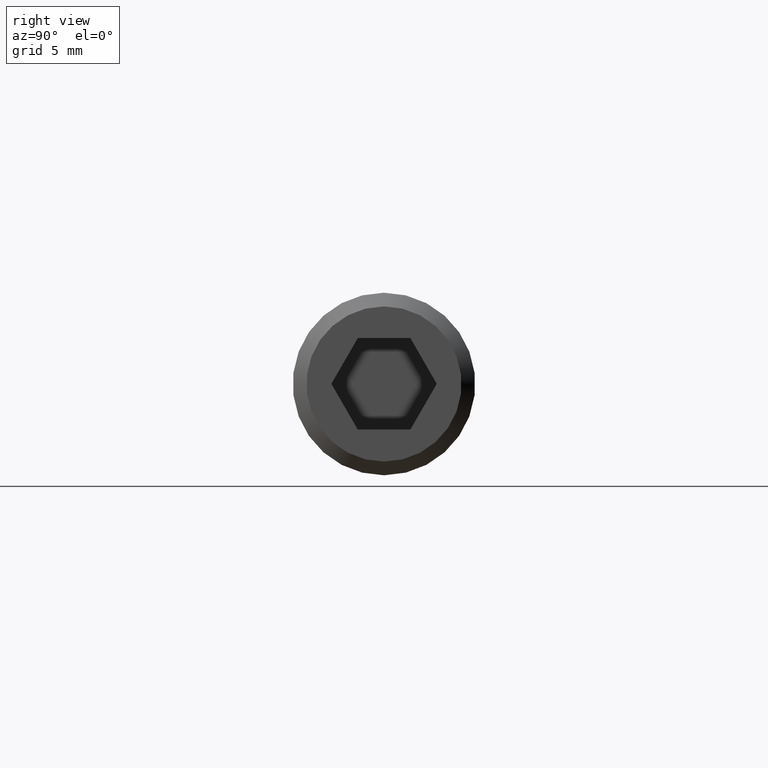
[diagram: clean part render]
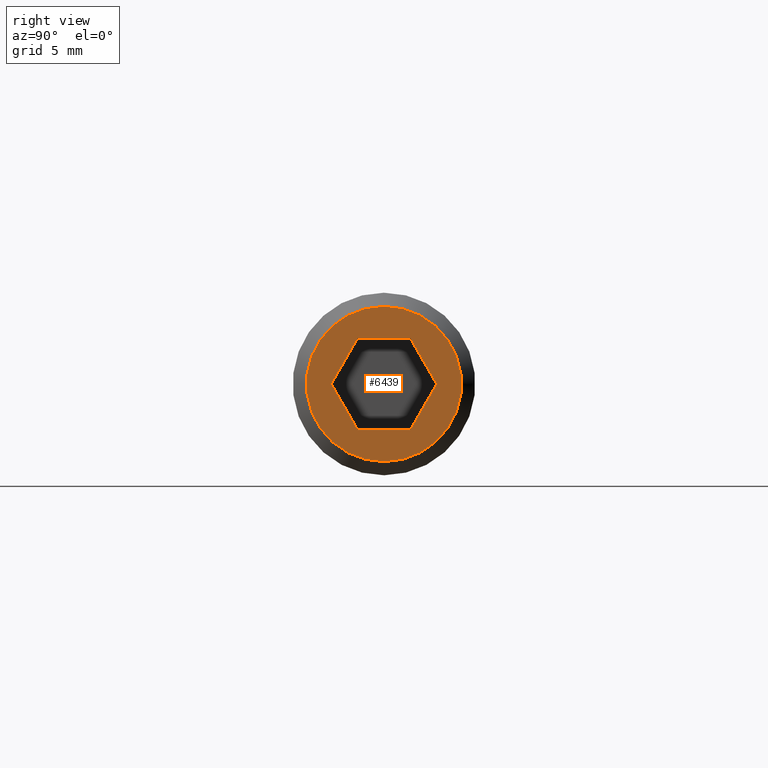
[diagram: same view with one face highlighted and labeled with its STEP entity id]
A machine part, right view. The second image highlights one B-rep face of the part: STEP entity #6439.
In plain terms, the highlighted planar face has unit normal (1, 0, 0).
Its self-contained STEP definition (entity closure, byte-faithful):
#275 = ORIENTED_EDGE ( 'NONE', *, *, #9650, .F. ) ;
#286 = LINE ( 'NONE', #12234, #2618 ) ;
#548 = CARTESIAN_POINT ( 'NONE',  ( 30.00000000000000000, -1.154700538379252400, -1.999999999999999600 ) ) ;
#970 = ORIENTED_EDGE ( 'NONE', *, *, #3928, .F. ) ;
#1005 = CARTESIAN_POINT ( 'NONE',  ( 30.00000000000000000, -2.309401076758502900, 2.168404344971008900E-016 ) ) ;
#1063 = EDGE_CURVE ( 'NONE', #8314, #8314, #10482, .T. ) ;
#1595 = CARTESIAN_POINT ( 'NONE',  ( 30.00000000000000000, -1.154700538379251000, 2.000000000000000000 ) ) ;
#1656 = VERTEX_POINT ( 'NONE', #12723 ) ;
#1833 = VERTEX_POINT ( 'NONE', #6808 ) ;
#2051 = CARTESIAN_POINT ( 'NONE',  ( 30.00000000000000000, 0.0000000000000000000, 0.0000000000000000000 ) ) ;
#2506 = CARTESIAN_POINT ( 'NONE',  ( 30.00000000000000000, -2.309401076758502500, 4.317532481129756600E-016 ) ) ;
#2618 = VECTOR ( 'NONE', #6367, 1000.000000000000000 ) ;
#2626 = DIRECTION ( 'NONE',  ( 0.0000000000000000000, -0.4999999999999999400, -0.8660254037844386000 ) ) ;
#2691 = VECTOR ( 'NONE', #10357, 1000.000000000000100 ) ;
#3044 = DIRECTION ( 'NONE',  ( 1.000000000000000000, 0.0000000000000000000, 0.0000000000000000000 ) ) ;
#3305 = ORIENTED_EDGE ( 'NONE', *, *, #1063, .T. ) ;
#3353 = AXIS2_PLACEMENT_3D ( 'NONE', #6063, #3937, #8928 ) ;
#3824 = CARTESIAN_POINT ( 'NONE',  ( 30.00000000000000000, -1.154700538379252400, -1.999999999999999600 ) ) ;
#3831 = FACE_OUTER_BOUND ( 'NONE', #4674, .T. ) ;
#3906 = VERTEX_POINT ( 'NONE', #548 ) ;
#3928 = EDGE_CURVE ( 'NONE', #1833, #1656, #286, .T. ) ;
#3937 = DIRECTION ( 'NONE',  ( 1.000000000000000000, 0.0000000000000000000, 0.0000000000000000000 ) ) ;
#4035 = CARTESIAN_POINT ( 'NONE',  ( 30.00000000000000000, 0.0000000000000000000, -3.400000000000000800 ) ) ;
#4674 = EDGE_LOOP ( 'NONE', ( #3305 ) ) ;
#4833 = DIRECTION ( 'NONE',  ( 0.0000000000000000000, 1.000000000000000000, 0.0000000000000000000 ) ) ;
#5522 = LINE ( 'NONE', #1595, #11510 ) ;
#5662 = EDGE_LOOP ( 'NONE', ( #12072, #8764, #970, #10079, #11413, #275 ) ) ;
#5923 = EDGE_CURVE ( 'NONE', #11010, #6556, #5522, .T. ) ;
#6063 = CARTESIAN_POINT ( 'NONE',  ( 30.00000000000000000, 0.0000000000000000000, 0.0000000000000000000 ) ) ;
#6301 = AXIS2_PLACEMENT_3D ( 'NONE', #2051, #3044, #7886 ) ;
#6367 = DIRECTION ( 'NONE',  ( 0.0000000000000000000, -0.4999999999999997200, 0.8660254037844388200 ) ) ;
#6439 = ADVANCED_FACE ( 'NONE', ( #8100, #3831 ), #6990, .T. ) ;
#6556 = VERTEX_POINT ( 'NONE', #1005 ) ;
#6806 = CARTESIAN_POINT ( 'NONE',  ( 30.00000000000000000, -1.154700538379251000, 2.000000000000000000 ) ) ;
#6808 = CARTESIAN_POINT ( 'NONE',  ( 30.00000000000000000, 2.309401076758503400, -8.844675031407550400E-016 ) ) ;
#6884 = VECTOR ( 'NONE', #11959, 1000.000000000000000 ) ;
#6985 = EDGE_CURVE ( 'NONE', #1656, #11010, #7496, .T. ) ;
#6990 = PLANE ( 'NONE',  #6301 ) ;
#7431 = EDGE_CURVE ( 'NONE', #3906, #12156, #10944, .T. ) ;
#7496 = LINE ( 'NONE', #12091, #6884 ) ;
#7724 = VECTOR ( 'NONE', #4833, 1000.000000000000000 ) ;
#7886 = DIRECTION ( 'NONE',  ( 0.0000000000000000000, 0.0000000000000000000, -1.000000000000000000 ) ) ;
#8100 = FACE_BOUND ( 'NONE', #5662, .T. ) ;
#8314 = VERTEX_POINT ( 'NONE', #4035 ) ;
#8359 = LINE ( 'NONE', #2506, #8960 ) ;
#8389 = EDGE_CURVE ( 'NONE', #12156, #1833, #10820, .T. ) ;
#8764 = ORIENTED_EDGE ( 'NONE', *, *, #6985, .F. ) ;
#8928 = DIRECTION ( 'NONE',  ( 0.0000000000000000000, 0.0000000000000000000, -1.000000000000000000 ) ) ;
#8960 = VECTOR ( 'NONE', #10278, 1000.000000000000000 ) ;
#9650 = EDGE_CURVE ( 'NONE', #6556, #3906, #8359, .T. ) ;
#10079 = ORIENTED_EDGE ( 'NONE', *, *, #8389, .F. ) ;
#10278 = DIRECTION ( 'NONE',  ( 0.0000000000000000000, 0.4999999999999995600, -0.8660254037844389300 ) ) ;
#10357 = DIRECTION ( 'NONE',  ( 0.0000000000000000000, 0.4999999999999999400, 0.8660254037844386000 ) ) ;
#10482 = CIRCLE ( 'NONE', #3353, 3.400000000000000800 ) ;
#10820 = LINE ( 'NONE', #11467, #2691 ) ;
#10944 = LINE ( 'NONE', #3824, #7724 ) ;
#11010 = VERTEX_POINT ( 'NONE', #6806 ) ;
#11413 = ORIENTED_EDGE ( 'NONE', *, *, #7431, .F. ) ;
#11467 = CARTESIAN_POINT ( 'NONE',  ( 30.00000000000000000, 1.154700538379252400, -1.999999999999999600 ) ) ;
#11510 = VECTOR ( 'NONE', #2626, 1000.000000000000100 ) ;
#11959 = DIRECTION ( 'NONE',  ( 0.0000000000000000000, -1.000000000000000000, 0.0000000000000000000 ) ) ;
#12072 = ORIENTED_EDGE ( 'NONE', *, *, #5923, .F. ) ;
#12091 = CARTESIAN_POINT ( 'NONE',  ( 30.00000000000000000, 1.154700538379252100, 2.000000000000000000 ) ) ;
#12156 = VERTEX_POINT ( 'NONE', #12158 ) ;
#12158 = CARTESIAN_POINT ( 'NONE',  ( 30.00000000000000000, 1.154700538379252400, -1.999999999999999600 ) ) ;
#12234 = CARTESIAN_POINT ( 'NONE',  ( 30.00000000000000000, 2.309401076758503400, -8.844675031407550400E-016 ) ) ;
#12723 = CARTESIAN_POINT ( 'NONE',  ( 30.00000000000000000, 1.154700538379252100, 2.000000000000000000 ) ) ;